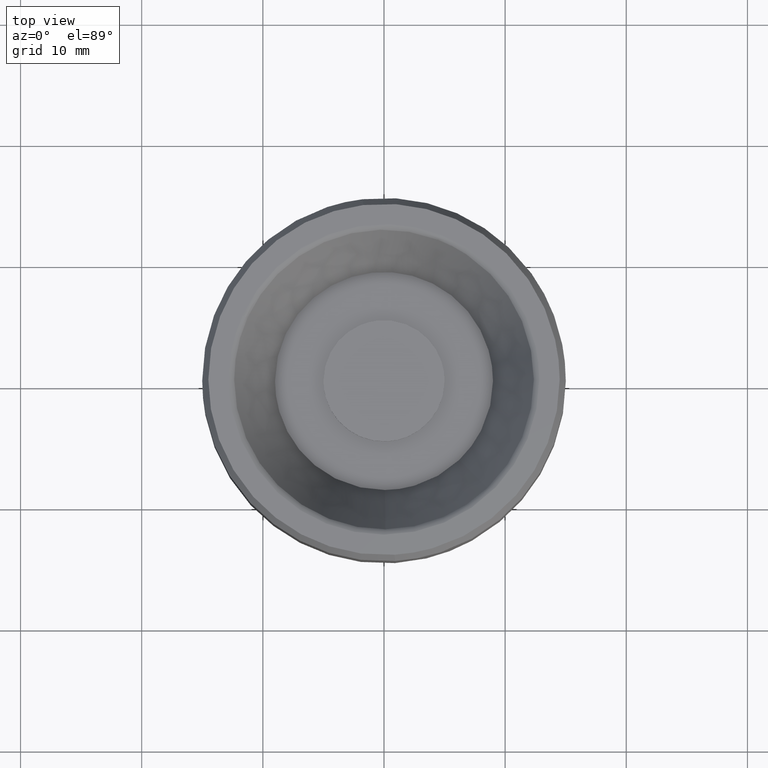
[diagram: clean part render]
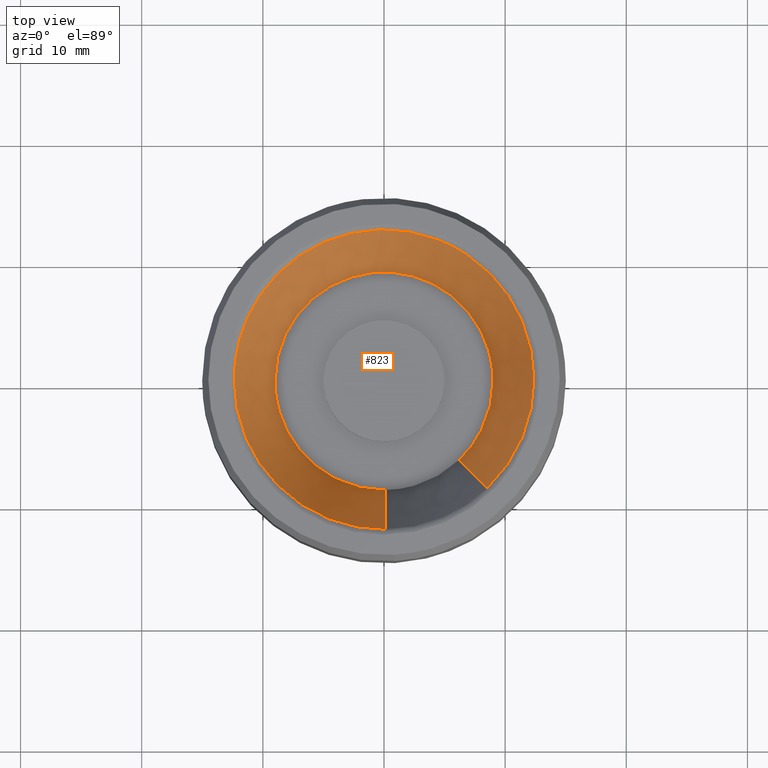
[diagram: same view with one face highlighted and labeled with its STEP entity id]
A machine part, top view. The second image highlights one B-rep face of the part: STEP entity #823.
In plain terms, the highlighted face is a freeform B-spline surface patch.
Its self-contained STEP definition (entity closure, byte-faithful):
#653=CARTESIAN_POINT('',(6.148731422813093,-6.456452382039500,10.319713931649066));
#654=CARTESIAN_POINT('',(8.949275465676564,-3.789385061101999,10.319713931649067));
#655=CARTESIAN_POINT('',(8.915527012559593,0.077804625523551,10.319713931649069));
#656=CARTESIAN_POINT('',(8.837722387036042,8.993331638083145,10.319713931649066));
#657=CARTESIAN_POINT('',(-0.077804625523551,8.915527012559593,10.319713931649069));
#658=CARTESIAN_POINT('',(-8.993331638083145,8.837722387036042,10.319713931649066));
#659=CARTESIAN_POINT('',(-8.915527012559593,-0.077804625523551,10.319713931649069));
#660=CARTESIAN_POINT('',(-8.837722387036042,-8.993331638083145,10.319713931649066));
#661=CARTESIAN_POINT('',(0.077804625523551,-8.915527012559593,10.319713931649069));
#662=CARTESIAN_POINT('',(8.587095981044927,-9.016847946214917,17.896235954097023));
#663=CARTESIAN_POINT('',(12.498234530044984,-5.292118160843893,17.896235954097026));
#664=CARTESIAN_POINT('',(12.451102660688649,0.108659126769001,17.896235954097030));
#665=CARTESIAN_POINT('',(12.342443533919644,12.559761787457646,17.896235954097023));
#666=CARTESIAN_POINT('',(-0.108659126769001,12.451102660688649,17.896235954097030));
#667=CARTESIAN_POINT('',(-12.559761787457646,12.342443533919644,17.896235954097023));
#668=CARTESIAN_POINT('',(-12.451102660688649,-0.108659126769001,17.896235954097030));
#669=CARTESIAN_POINT('',(-12.342443533919644,-12.559761787457646,17.896235954097023));
#670=CARTESIAN_POINT('',(0.108659126769001,-12.451102660688649,17.896235954097030));
#678=(BOUNDED_SURFACE()B_SPLINE_SURFACE(2,1,((#653,#662),(#654,#663),(#655,#664),(#656,#665),(#657,#666),(#658,#667),(#659,#668),(#660,#669),(#661,#670)),.UNSPECIFIED.,.F.,.F.,.U.)B_SPLINE_SURFACE_WITH_KNOTS((3,2,2,2,3),(2,2),(0.0,10.727832907203680,31.358280805672290,51.988728704140911,72.619176602609528),(0.0,8.360917002370567),.UNSPECIFIED.)GEOMETRIC_REPRESENTATION_ITEM()RATIONAL_B_SPLINE_SURFACE(((0.853787705168325,0.853787705168325),(0.847695526217005,0.847695526217005),(1.0,1.0),(0.707106781186548,0.707106781186548),(1.0,1.0),(0.707106781186548,0.707106781186548),(1.0,1.0),(0.707106781186548,0.707106781186548),(1.0,1.0)))REPRESENTATION_ITEM('')SURFACE());
#679=CARTESIAN_POINT('',(8.527623674305284,-8.954399273454229,17.711442732665549));
#680=VERTEX_POINT('',#679);
#681=CARTESIAN_POINT('',(12.365339941910600,0.0,17.711442732665549));
#682=VERTEX_POINT('',#681);
#683=CARTESIAN_POINT('',(8.527623674305284,-8.954399273454229,17.711442732665557));
#684=CARTESIAN_POINT('',(12.365339941910603,-5.299592390326016,17.711442732665546));
#685=CARTESIAN_POINT('',(12.365339941910600,0.0,17.711442732665549));
#693=(BOUNDED_CURVE()B_SPLINE_CURVE(2,(#683,#684,#685),.UNSPECIFIED.,.F.,.U.)B_SPLINE_CURVE_WITH_KNOTS((3,3),(0.871317023849513,1.0),.UNSPECIFIED.)CURVE()GEOMETRIC_REPRESENTATION_ITEM()RATIONAL_B_SPLINE_CURVE((0.853680523245778,0.849238515635157,1.0))REPRESENTATION_ITEM(''));
#694=EDGE_CURVE('',#680,#682,#693,.T.);
#695=ORIENTED_EDGE('',*,*,#694,.T.);
#696=CARTESIAN_POINT('',(4.471879109759468,11.528396641447490,17.711442734037320));
#697=VERTEX_POINT('',#696);
#698=CARTESIAN_POINT('',(12.365339941910600,0.0,17.711442732665549));
#699=CARTESIAN_POINT('',(12.365339941910600,8.466513562217843,17.711442732665542));
#700=CARTESIAN_POINT('',(4.471879109759468,11.528396641447497,17.711442734037316));
#708=(BOUNDED_CURVE()B_SPLINE_CURVE(2,(#698,#699,#700),.UNSPECIFIED.,.F.,.U.)B_SPLINE_CURVE_WITH_KNOTS((3,3),(0.0,0.188590655709449),.UNSPECIFIED.)CURVE()GEOMETRIC_REPRESENTATION_ITEM()RATIONAL_B_SPLINE_CURVE((1.0,0.779052303244480,0.891453974557887))REPRESENTATION_ITEM(''));
#709=EDGE_CURVE('',#682,#697,#708,.T.);
#710=ORIENTED_EDGE('',*,*,#709,.T.);
#711=CARTESIAN_POINT('',(-11.253769711002420,5.123894922761965,17.711442733425621));
#712=VERTEX_POINT('',#711);
#713=CARTESIAN_POINT('',(4.471879109759468,11.528396641447497,17.711442734037316));
#714=CARTESIAN_POINT('',(2.314259436868414,12.365339941910602,17.711442732665546));
#715=CARTESIAN_POINT('',(0.0,12.365339941910600,17.711442732665549));
#716=CARTESIAN_POINT('',(-7.956705320637200,12.365339941910600,17.711442732665549));
#717=CARTESIAN_POINT('',(-11.253769711002422,5.123894922761965,17.711442733425621));
#725=(BOUNDED_CURVE()B_SPLINE_CURVE(2,(#713,#714,#715,#716,#717),.UNSPECIFIED.,.F.,.U.)B_SPLINE_CURVE_WITH_KNOTS((3,2,3),(0.188590655709449,0.250000000000000,0.429624510041753),.UNSPECIFIED.)CURVE()GEOMETRIC_REPRESENTATION_ITEM()RATIONAL_B_SPLINE_CURVE((0.891453974557887,0.928054477942068,1.0,0.789556796304327,0.881519651452270))REPRESENTATION_ITEM(''));
#726=EDGE_CURVE('',#697,#712,#725,.T.);
#727=ORIENTED_EDGE('',*,*,#726,.T.);
#728=CARTESIAN_POINT('',(-12.365339941910600,0.0,17.711442732665549));
#729=VERTEX_POINT('',#728);
#730=CARTESIAN_POINT('',(-11.253769711002422,5.123894922761966,17.711442733425617));
#731=CARTESIAN_POINT('',(-12.365339941910596,2.682518667163292,17.711442732665542));
#732=CARTESIAN_POINT('',(-12.365339941910600,0.0,17.711442732665549));
#740=(BOUNDED_CURVE()B_SPLINE_CURVE(2,(#730,#731,#732),.UNSPECIFIED.,.F.,.U.)B_SPLINE_CURVE_WITH_KNOTS((3,3),(0.429624510041753,0.500000000000000),.UNSPECIFIED.)CURVE()GEOMETRIC_REPRESENTATION_ITEM()RATIONAL_B_SPLINE_CURVE((0.881519651452271,0.917549984882221,1.0))REPRESENTATION_ITEM(''));
#741=EDGE_CURVE('',#712,#729,#740,.T.);
#742=ORIENTED_EDGE('',*,*,#741,.T.);
#743=CARTESIAN_POINT('',(0.107906577977246,-12.364869107657009,17.711442732670051));
#744=VERTEX_POINT('',#743);
#745=CARTESIAN_POINT('',(-12.365339941910600,0.0,17.711442732665549));
#746=CARTESIAN_POINT('',(-12.365339941910600,-12.365339941910600,17.711442732665539));
#747=CARTESIAN_POINT('',(0.0,-12.365339941910600,17.711442732665549));
#748=CARTESIAN_POINT('',(0.053954316208481,-12.365339941910598,17.711442732665549));
#749=CARTESIAN_POINT('',(0.107906577977246,-12.364869107657007,17.711442732670051));
#757=(BOUNDED_CURVE()B_SPLINE_CURVE(2,(#745,#746,#747,#748,#749),.UNSPECIFIED.,.F.,.U.)B_SPLINE_CURVE_WITH_KNOTS((3,2,3),(0.500000000000000,0.750000000000000,0.751539894335691),.UNSPECIFIED.)CURVE()GEOMETRIC_REPRESENTATION_ITEM()RATIONAL_B_SPLINE_CURVE((1.0,0.707106781186548,1.0,0.998195901565548,0.996414028098778))REPRESENTATION_ITEM(''));
#758=EDGE_CURVE('',#729,#744,#757,.T.);
#759=ORIENTED_EDGE('',*,*,#758,.T.);
#760=CARTESIAN_POINT('',(0.078538819495779,-8.999657307578334,10.500000000001901));
#761=VERTEX_POINT('',#760);
#762=CARTESIAN_POINT('',(0.078538819495779,-8.999657307578334,10.500000000001901));
#763=CARTESIAN_POINT('',(0.107906577977246,-12.364869107657009,17.711442732670051));
#764=QUASI_UNIFORM_CURVE('',1,(#762,#763),.UNSPECIFIED.,.F.,.U.);
#765=EDGE_CURVE('',#761,#744,#764,.T.);
#766=ORIENTED_EDGE('',*,*,#765,.F.);
#767=CARTESIAN_POINT('',(-9.0,0.0,10.500000000000000));
#768=VERTEX_POINT('',#767);
#769=CARTESIAN_POINT('',(0.078538819495779,-8.999657307578334,10.500000000001892));
#770=CARTESIAN_POINT('',(0.039270157396718,-9.0,10.500000000000002));
#771=CARTESIAN_POINT('',(0.0,-9.0,10.500000000000000));
#772=CARTESIAN_POINT('',(-9.0,-9.0,10.500000000000000));
#773=CARTESIAN_POINT('',(-9.0,0.0,10.500000000000000));
#781=(BOUNDED_CURVE()B_SPLINE_CURVE(2,(#769,#770,#771,#772,#773),.UNSPECIFIED.,.F.,.U.)B_SPLINE_CURVE_WITH_KNOTS((3,2,3),(0.748460105664606,0.750000000000000,1.0),.UNSPECIFIED.)CURVE()GEOMETRIC_REPRESENTATION_ITEM()RATIONAL_B_SPLINE_CURVE((0.996414028099463,0.998195901565895,1.0,0.707106781186547,1.0))REPRESENTATION_ITEM(''));
#782=EDGE_CURVE('',#761,#768,#781,.T.);
#783=ORIENTED_EDGE('',*,*,#782,.T.);
#784=CARTESIAN_POINT('',(9.0,0.0,10.500000000000000));
#785=VERTEX_POINT('',#784);
#786=CARTESIAN_POINT('',(-9.0,0.0,10.500000000000000));
#787=CARTESIAN_POINT('',(-9.0,9.0,10.500000000000000));
#788=CARTESIAN_POINT('',(0.0,9.0,10.500000000000000));
#789=CARTESIAN_POINT('',(9.0,9.0,10.500000000000000));
#790=CARTESIAN_POINT('',(9.0,0.0,10.500000000000000));
#798=(BOUNDED_CURVE()B_SPLINE_CURVE(2,(#786,#787,#788,#789,#790),.UNSPECIFIED.,.F.,.U.)B_SPLINE_CURVE_WITH_KNOTS((3,2,3),(0.0,0.250000000000000,0.500000000000000),.UNSPECIFIED.)CURVE()GEOMETRIC_REPRESENTATION_ITEM()RATIONAL_B_SPLINE_CURVE((1.0,0.707106781186547,1.0,0.707106781186547,1.0))REPRESENTATION_ITEM(''));
#799=EDGE_CURVE('',#768,#785,#798,.T.);
#800=ORIENTED_EDGE('',*,*,#799,.T.);
#801=CARTESIAN_POINT('',(6.206753185055876,-6.517377915987286,10.500000000000011));
#802=VERTEX_POINT('',#801);
#803=CARTESIAN_POINT('',(9.0,0.0,10.500000000000000));
#804=CARTESIAN_POINT('',(9.0,-3.857260029808524,10.500000000000000));
#805=CARTESIAN_POINT('',(6.206753185055876,-6.517377915987286,10.500000000000011));
#813=(BOUNDED_CURVE()B_SPLINE_CURVE(2,(#803,#804,#805),.UNSPECIFIED.,.F.,.U.)B_SPLINE_CURVE_WITH_KNOTS((3,3),(0.500000000000000,0.628682976150469),.UNSPECIFIED.)CURVE()GEOMETRIC_REPRESENTATION_ITEM()RATIONAL_B_SPLINE_CURVE((1.0,0.849238515635177,0.853680523245777))REPRESENTATION_ITEM(''));
#814=EDGE_CURVE('',#785,#802,#813,.T.);
#815=ORIENTED_EDGE('',*,*,#814,.T.);
#816=CARTESIAN_POINT('',(6.206753185055876,-6.517377915987286,10.500000000000011));
#817=CARTESIAN_POINT('',(8.527623674305284,-8.954399273454229,17.711442732665549));
#818=QUASI_UNIFORM_CURVE('',1,(#816,#817),.UNSPECIFIED.,.F.,.U.);
#819=EDGE_CURVE('',#802,#680,#818,.T.);
#820=ORIENTED_EDGE('',*,*,#819,.T.);
#821=EDGE_LOOP('',(#695,#710,#727,#742,#759,#766,#783,#800,#815,#820));
#822=FACE_OUTER_BOUND('',#821,.T.);
#823=ADVANCED_FACE('',(#822),#678,.F.);